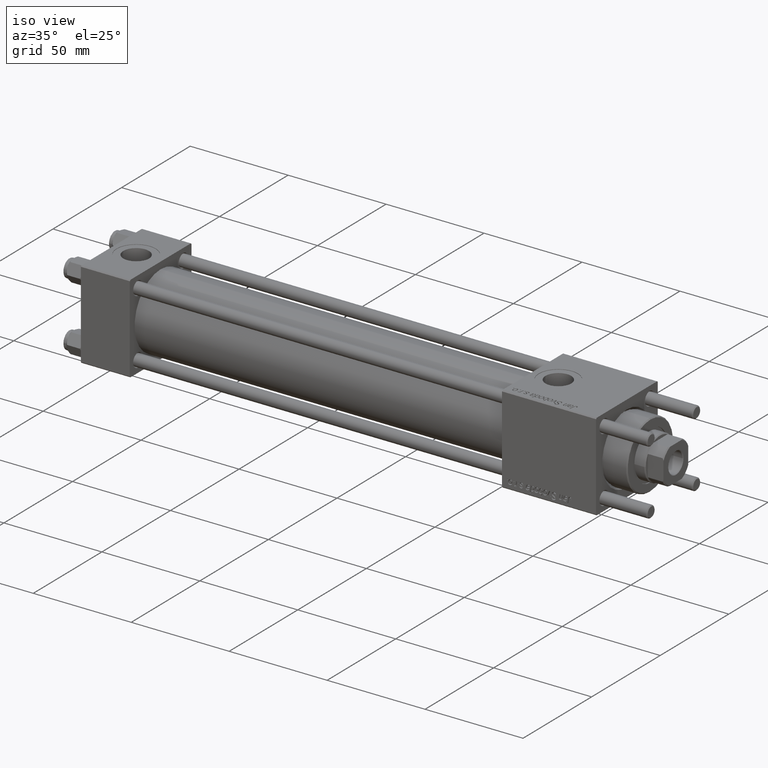
[diagram: clean part render]
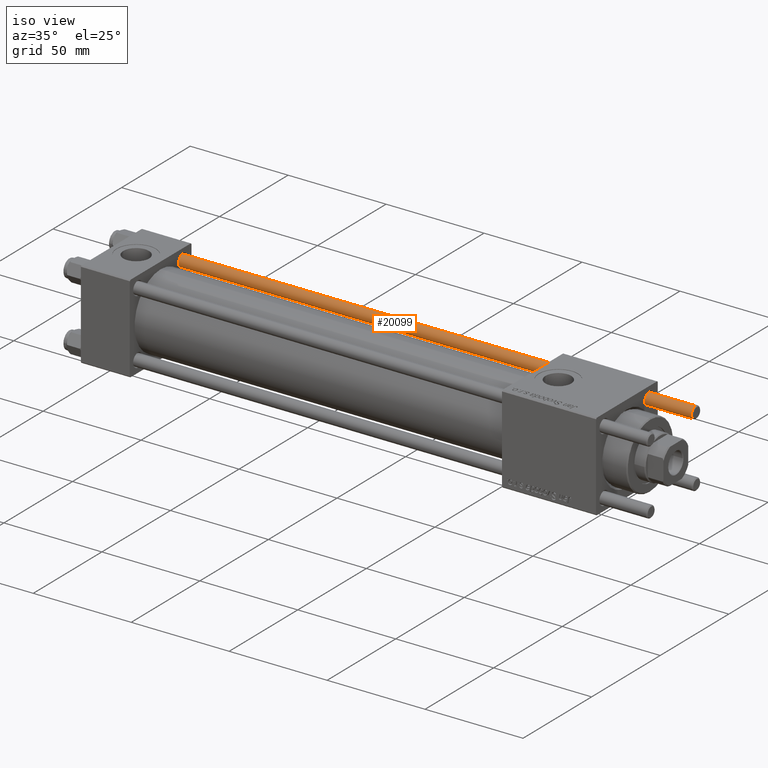
[diagram: same view with one face highlighted and labeled with its STEP entity id]
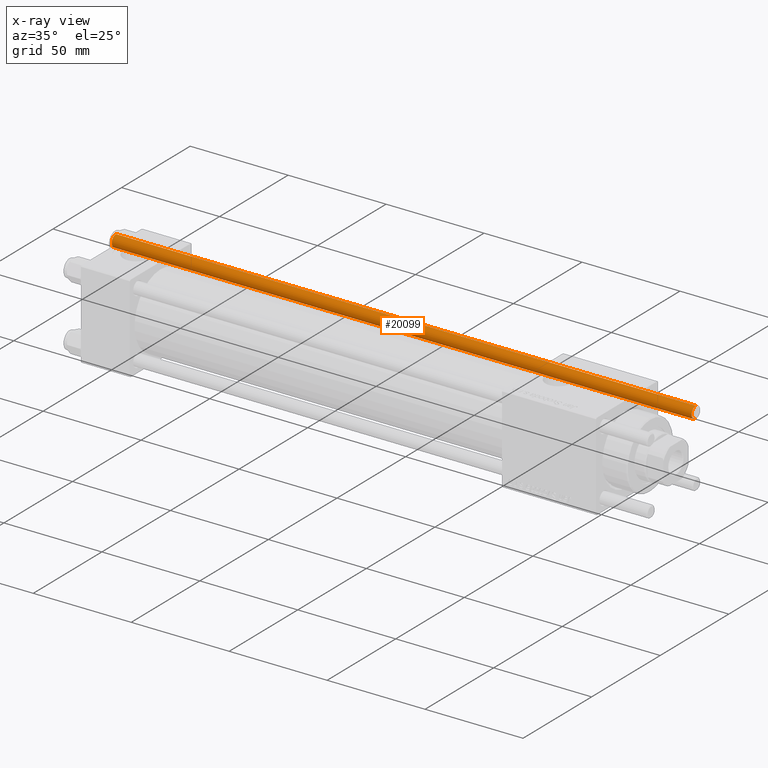
[diagram: x-ray of the same camera — body ghosted, the highlighted face saturated]
A machine part, iso view. The second image highlights one B-rep face of the part: STEP entity #20099.
The next image is the same camera in x-ray: the body ghosted, the highlighted face saturated — about 0% of this face is hidden behind the body in this view.
In plain terms, the highlighted cylindrical surface (edge-blend (fillet) strip) has radius 3 mm, axis along (1, -0, -0).
Its self-contained STEP definition (entity closure, byte-faithful):
#2026 = EDGE_CURVE ( 'NONE', #49948, #16599, #21023, .T. ) ;
#2641 = CARTESIAN_POINT ( 'NONE',  ( 0.000000000000000000, 0.000000000000000000, 296.5000000000000000 ) ) ;
#3529 = DIRECTION ( 'NONE',  ( 1.000000000000000000, 0.000000000000000000, 0.000000000000000000 ) ) ;
#7578 = LINE ( 'NONE', #56369, #16472 ) ;
#11570 = DIRECTION ( 'NONE',  ( 0.000000000000000000, 0.000000000000000000, -1.000000000000000000 ) ) ;
#11672 = DIRECTION ( 'NONE',  ( -0.000000000000000000, -0.000000000000000000, -1.000000000000000000 ) ) ;
#11756 = DIRECTION ( 'NONE',  ( -0.000000000000000000, -0.000000000000000000, 1.000000000000000000 ) ) ;
#13849 = FACE_OUTER_BOUND ( 'NONE', #29043, .T. ) ;
#15624 = DIRECTION ( 'NONE',  ( 1.000000000000000000, 0.000000000000000000, 0.000000000000000000 ) ) ;
#15733 = AXIS2_PLACEMENT_3D ( 'NONE', #2641, #11570, #3529 ) ;
#16472 = VECTOR ( 'NONE', #47151, 1000.000000000000000 ) ;
#16599 = VERTEX_POINT ( 'NONE', #20502 ) ;
#17035 = LINE ( 'NONE', #38456, #17976 ) ;
#17976 = VECTOR ( 'NONE', #11672, 1000.000000000000000 ) ;
#20099 = ADVANCED_FACE ( 'NONE', ( #13849 ), #27524, .T. ) ;
#20502 = CARTESIAN_POINT ( 'NONE',  ( 3.000000000000000444, 3.673940397442060361E-16, 0.5000000000000004441 ) ) ;
#21023 = CIRCLE ( 'NONE', #33379, 3.000000000000000444 ) ;
#22743 = EDGE_CURVE ( 'NONE', #26306, #49948, #7578, .T. ) ;
#25940 = CARTESIAN_POINT ( 'NONE',  ( -3.000000000000000444, 0.000000000000000000, 0.5000000000000004441 ) ) ;
#26306 = VERTEX_POINT ( 'NONE', #28676 ) ;
#27524 = CYLINDRICAL_SURFACE ( 'NONE', #51747, 3.000000000000000444 ) ;
#28616 = DIRECTION ( 'NONE',  ( -0.000000000000000000, -0.000000000000000000, -1.000000000000000000 ) ) ;
#28676 = CARTESIAN_POINT ( 'NONE',  ( -3.000000000000000444, 0.000000000000000000, 296.5000000000000000 ) ) ;
#29043 = EDGE_LOOP ( 'NONE', ( #30360, #37778, #58091, #36010 ) ) ;
#30205 = EDGE_CURVE ( 'NONE', #47180, #16599, #17035, .T. ) ;
#30360 = ORIENTED_EDGE ( 'NONE', *, *, #30205, .F. ) ;
#33379 = AXIS2_PLACEMENT_3D ( 'NONE', #42401, #11756, #15624 ) ;
#36010 = ORIENTED_EDGE ( 'NONE', *, *, #2026, .T. ) ;
#37778 = ORIENTED_EDGE ( 'NONE', *, *, #55236, .T. ) ;
#38456 = CARTESIAN_POINT ( 'NONE',  ( 3.000000000000000444, 3.673940397442060361E-16, 297.0000000000000000 ) ) ;
#39020 = CARTESIAN_POINT ( 'NONE',  ( 0.000000000000000000, 0.000000000000000000, 297.0000000000000000 ) ) ;
#39410 = CARTESIAN_POINT ( 'NONE',  ( 3.000000000000000444, 3.673940397442060361E-16, 296.5000000000000000 ) ) ;
#41402 = CIRCLE ( 'NONE', #15733, 3.000000000000000444 ) ;
#42401 = CARTESIAN_POINT ( 'NONE',  ( 0.000000000000000000, 0.000000000000000000, 0.5000000000000004441 ) ) ;
#47151 = DIRECTION ( 'NONE',  ( -0.000000000000000000, -0.000000000000000000, -1.000000000000000000 ) ) ;
#47180 = VERTEX_POINT ( 'NONE', #39410 ) ;
#47936 = DIRECTION ( 'NONE',  ( -1.000000000000000000, 0.000000000000000000, 0.000000000000000000 ) ) ;
#49948 = VERTEX_POINT ( 'NONE', #25940 ) ;
#51747 = AXIS2_PLACEMENT_3D ( 'NONE', #39020, #28616, #47936 ) ;
#55236 = EDGE_CURVE ( 'NONE', #47180, #26306, #41402, .T. ) ;
#56369 = CARTESIAN_POINT ( 'NONE',  ( -3.000000000000000444, 0.000000000000000000, 297.0000000000000000 ) ) ;
#58091 = ORIENTED_EDGE ( 'NONE', *, *, #22743, .T. ) ;